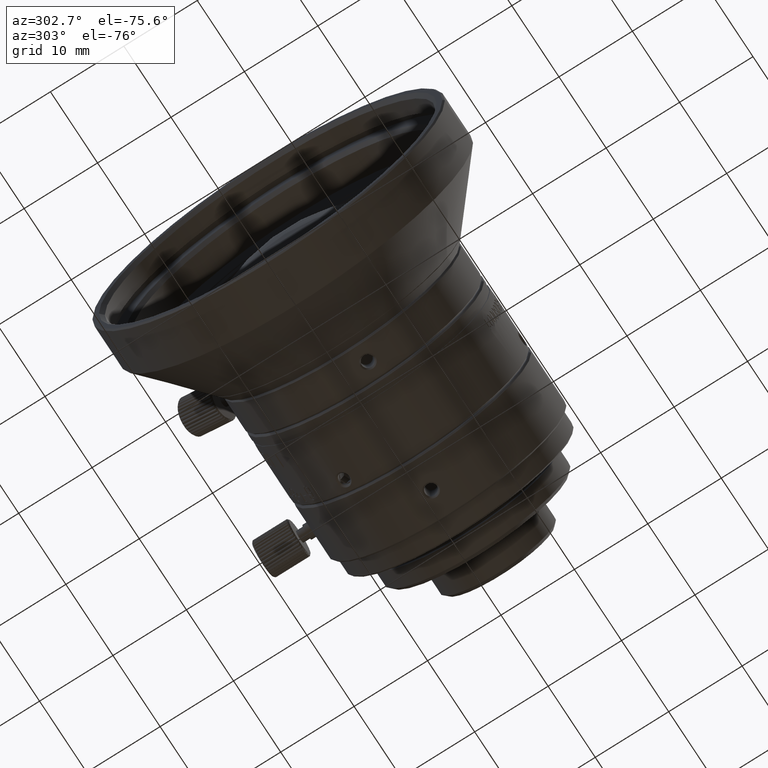
[diagram: clean part render]
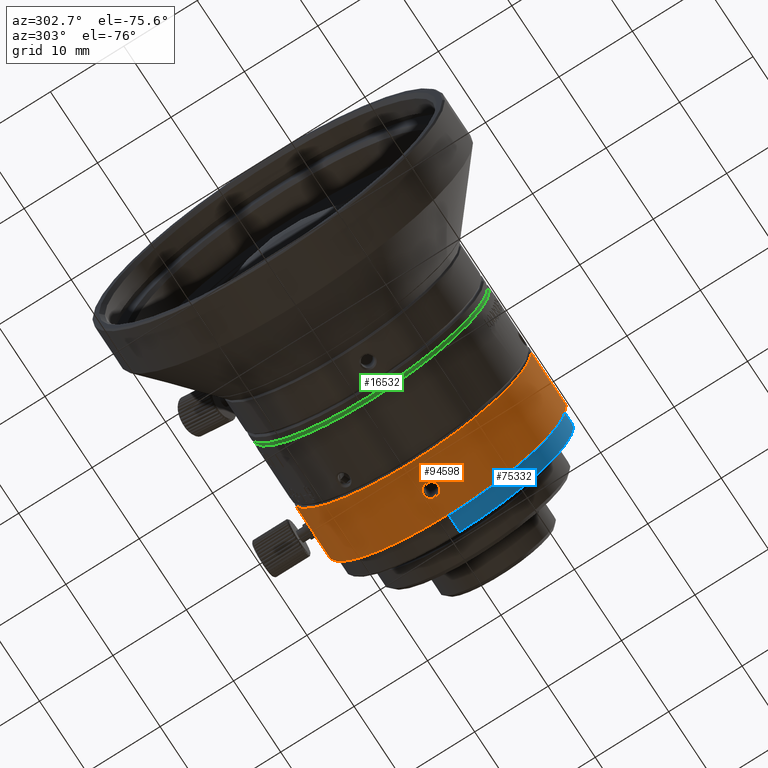
[diagram: same view with three faces highlighted in distinct colors, each labeled with its STEP entity id]
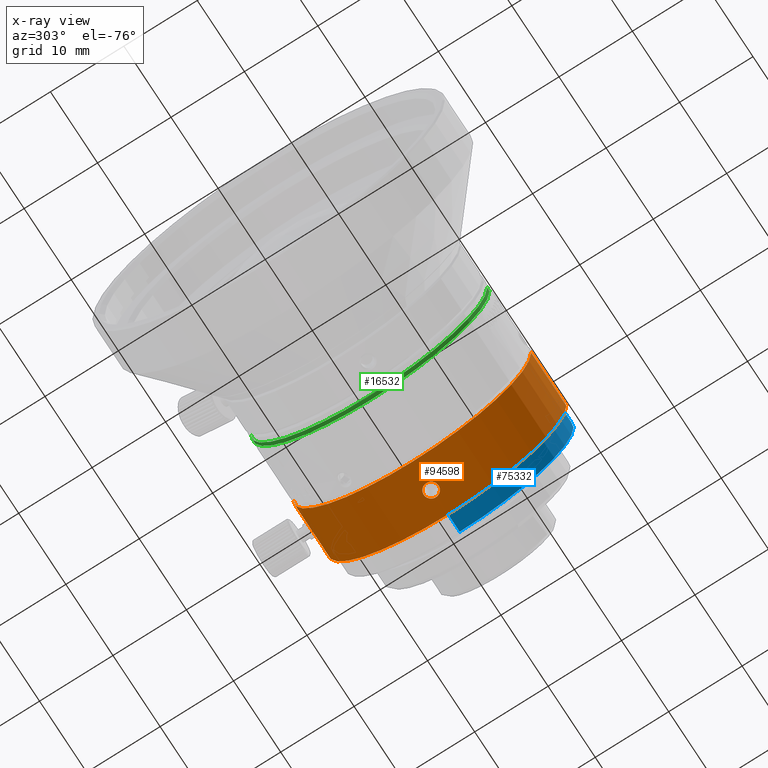
[diagram: x-ray of the same camera — body ghosted, the three highlighted faces saturated]
A machine part, auxiliary view with three faces highlighted in distinct colors.
The next image is the same camera in x-ray (body ghosted, the three faces saturated) — at least one of them is partly hidden behind the body in this view.
Their STEP definitions:

[orange] entity #94598 — the highlighted cylindrical surface (partial cylindrical patch) has radius 16.2 mm, axis along (1, 0, 0).
#1651 = VERTEX_POINT ( 'NONE', #30249 ) ;
#1791 = DIRECTION ( 'NONE',  ( 1.000000000000000000, -1.722961085593215078E-24, -8.815170815523999809E-12 ) ) ;
#2035 = CARTESIAN_POINT ( 'NONE',  ( 15.18534042907000092, -1.023954237996000050, -16.16759885121999929 ) ) ;
#2586 = CARTESIAN_POINT ( 'NONE',  ( 13.08276785900999961, 0.000000000000000000, -1.901589996578000030E-12 ) ) ;
#3249 = VERTEX_POINT ( 'NONE', #55598 ) ;
#3256 = CARTESIAN_POINT ( 'NONE',  ( 14.20437076444000013, 0.2596278309068000278, -16.19860793984000225 ) ) ;
#5725 = VERTEX_POINT ( 'NONE', #36969 ) ;
#7796 = VERTEX_POINT ( 'NONE', #62066 ) ;
#8870 = CARTESIAN_POINT ( 'NONE',  ( 14.20594869688999928, -0.2667350820668999978, -16.19850681342999721 ) ) ;
#9055 = ORIENTED_EDGE ( 'NONE', *, *, #91203, .F. ) ;
#9868 = ORIENTED_EDGE ( 'NONE', *, *, #31288, .F. ) ;
#10240 = VECTOR ( 'NONE', #44427, 1000.000000000000114 ) ;
#11054 = CARTESIAN_POINT ( 'NONE',  ( 14.30571687991000118, 0.5109972754256000282, -16.19251426003999939 ) ) ;
#11437 = AXIS2_PLACEMENT_3D ( 'NONE', #92370, #1791, #84082 ) ;
#11581 = CARTESIAN_POINT ( 'NONE',  ( 14.91276785900999968, 0.000000000000000000, -1.901589996578000030E-12 ) ) ;
#11656 = CARTESIAN_POINT ( 'NONE',  ( 15.68851022552000174, 16.17588453354000322, -0.8868685891627999807 ) ) ;
#13813 = VECTOR ( 'NONE', #49182, 1000.000000000000000 ) ;
#14437 = DIRECTION ( 'NONE',  ( -1.000000000000000000, 5.424387227406000301E-12, -3.679217242746999965E-09 ) ) ;
#14481 = DIRECTION ( 'NONE',  ( 1.000000000000000000, 0.000000000000000000, 0.000000000000000000 ) ) ;
#15400 = LINE ( 'NONE', #58267, #29796 ) ;
#15711 = VECTOR ( 'NONE', #39110, 1000.000000000000000 ) ;
#18328 = EDGE_CURVE ( 'NONE', #36064, #86863, #29776, .T. ) ;
#18384 = EDGE_CURVE ( 'NONE', #81886, #82570, #42471, .T. ) ;
#18465 = CARTESIAN_POINT ( 'NONE',  ( 14.30865479807000007, 16.19235046763000341, -0.5156898750541000220 ) ) ;
#18868 = DIRECTION ( 'NONE',  ( 0.000000000000000000, -1.000000000000000000, 1.173820985542000184E-13 ) ) ;
#19440 = ORIENTED_EDGE ( 'NONE', *, *, #48914, .F. ) ;
#19830 = DIRECTION ( 'NONE',  ( 1.000000000000000000, 0.000000000000000000, 0.000000000000000000 ) ) ;
#20381 = CARTESIAN_POINT ( 'NONE',  ( 14.47081415363000190, 16.18401877131999811, -0.7275170735867000360 ) ) ;
#22002 = CARTESIAN_POINT ( 'NONE',  ( 11.58276785900999961, 16.19999999999999929, 6.221713051510001204E-10 ) ) ;
#22996 = CARTESIAN_POINT ( 'NONE',  ( 16.18276785896000192, 2.322637394775999978E-08, -16.19999999994999840 ) ) ;
#23478 = CARTESIAN_POINT ( 'NONE',  ( 14.92510222602999903, -0.9902110472946000774, -16.16974852329999734 ) ) ;
#23653 = EDGE_CURVE ( 'NONE', #86863, #1651, #54165, .T. ) ;
#23873 = CIRCLE ( 'NONE', #59665, 16.19999999999999929 ) ;
#25666 = CARTESIAN_POINT ( 'NONE',  ( 16.18276785693000264, 0.08865937756656000479, -16.19999999980999661 ) ) ;
#25723 = DIRECTION ( 'NONE',  ( 1.000000000000000000, 0.000000000000000000, 0.000000000000000000 ) ) ;
#26029 = EDGE_LOOP ( 'NONE', ( #19440, #29024, #28886, #86872, #9055, #9868, #39815, #81169, #50043, #51751 ) ) ;
#26130 = CARTESIAN_POINT ( 'NONE',  ( 14.92034661370999871, 0.9889528994217999802, -16.16982776017999868 ) ) ;
#26537 = EDGE_CURVE ( 'NONE', #66237, #3249, #36542, .T. ) ;
#26663 = CYLINDRICAL_SURFACE ( 'NONE', #51531, 16.19999999999999929 ) ;
#28886 = ORIENTED_EDGE ( 'NONE', *, *, #90968, .F. ) ;
#29024 = ORIENTED_EDGE ( 'NONE', *, *, #96403, .F. ) ;
#29776 = B_SPLINE_CURVE_WITH_KNOTS ( 'NONE', 3,
 ( #42277, #71973, #78336, #34984, #57389, #11656, #92999, #87110, #41310, #34513, #20381, #18465, #49097, #78825, #64185 ),
 .UNSPECIFIED., .F., .F.,
 ( 4, 1, 1, 1, 1, 1, 1, 1, 1, 1, 1, 1, 4 ),
 ( 0.000000000000000000, 0.08333333202694999386, 0.1666666664135000031, 0.2500000008000000107, 0.3333333351866000216, 0.4166666695731999770, 0.5000000039597000123, 0.5833333383461999366, 0.6666666727328999231, 0.7500000071193000384, 0.8333333415057999627, 0.9166666758924999492, 1.000000000000000000 ),
 .UNSPECIFIED. ) ;
#29796 = VECTOR ( 'NONE', #14437, 1000.000000000000000 ) ;
#30249 = CARTESIAN_POINT ( 'NONE',  ( 13.08276785900999961, 16.19999999999999929, 8.500283810165000382E-13 ) ) ;
#31256 = CARTESIAN_POINT ( 'NONE',  ( 15.89763065306000200, -0.7245493843839000414, -16.18415386043000126 ) ) ;
#31288 = EDGE_CURVE ( 'NONE', #68317, #5725, #71357, .T. ) ;
#31734 = CARTESIAN_POINT ( 'NONE',  ( 14.18276785905999837, -2.322566548222999644E-08, -16.19999999994999840 ) ) ;
#31932 = AXIS2_PLACEMENT_3D ( 'NONE', #2586, #38606, #84400 ) ;
#32277 = CARTESIAN_POINT ( 'NONE',  ( 16.18276785935000106, 16.20000000000999663, -8.787671505888998401E-09 ) ) ;
#33438 = CARTESIAN_POINT ( 'NONE',  ( 16.05680150703999942, 0.5157593740102000002, -16.19234597594000036 ) ) ;
#33532 = CIRCLE ( 'NONE', #31932, 16.20000000000000639 ) ;
#34513 = CARTESIAN_POINT ( 'NONE',  ( 14.68148907370999900, 16.17573771188000009, -0.8895027490008999838 ) ) ;
#34984 = CARTESIAN_POINT ( 'NONE',  ( 16.05986868609999618, 16.19251709911000248, -0.5109111485076001102 ) ) ;
#35042 = CARTESIAN_POINT ( 'NONE',  ( 14.18276785905999837, -2.322566548222999644E-08, -16.19999999994999840 ) ) ;
#35085 = CARTESIAN_POINT ( 'NONE',  ( 18.64276785901000011, 16.19999999999999929, 2.632029100178000149E-10 ) ) ;
#35170 = CARTESIAN_POINT ( 'NONE',  ( 18.64276785901000011, -16.19999999999999929, 2.475535604338000097E-10 ) ) ;
#36064 = VERTEX_POINT ( 'NONE', #32277 ) ;
#36542 = B_SPLINE_CURVE_WITH_KNOTS ( 'NONE', 3,
 ( #71371, #92879, #3256, #11054, #92397, #48492, #26130, #64063, #93823, #55834, #78211, #33438, #56791, #25666, #86507 ),
 .UNSPECIFIED., .F., .F.,
 ( 4, 1, 1, 1, 1, 1, 1, 1, 1, 1, 1, 1, 4 ),
 ( 0.000000000000000000, 0.08333334075205998948, 0.1666666740724999929, 0.2500000073930000455, 0.3333333407132999526, 0.4166666740338000330, 0.5000000073540999956, 0.5833333406746000760, 0.6666666739951000453, 0.7500000073154000635, 0.8333333406358000017, 0.9166666739563000821, 1.000000000000000000 ),
 .UNSPECIFIED. ) ;
#36969 = CARTESIAN_POINT ( 'NONE',  ( 11.58276785900999961, 16.19999999999999929, 6.221713051510001204E-10 ) ) ;
#37190 = EDGE_CURVE ( 'NONE', #7796, #1651, #33532, .T. ) ;
#38045 = DIRECTION ( 'NONE',  ( -1.000000000000000000, 2.664535259098000279E-13, 3.107332204090000060E-09 ) ) ;
#38065 = CARTESIAN_POINT ( 'NONE',  ( 16.18276785896000192, -0.08681274266614999457, -16.19999999994999840 ) ) ;
#38533 = CARTESIAN_POINT ( 'NONE',  ( 14.18276786108999943, -0.08865937756585000329, -16.19999999980999661 ) ) ;
#38606 = DIRECTION ( 'NONE',  ( 1.000000000000000000, 0.000000000000000000, 0.000000000000000000 ) ) ;
#39110 = DIRECTION ( 'NONE',  ( 1.000000000000000000, 2.428798895694999775E-14, 1.790072004293999993E-10 ) ) ;
#39815 = ORIENTED_EDGE ( 'NONE', *, *, #72976, .F. ) ;
#41310 = CARTESIAN_POINT ( 'NONE',  ( 14.92493014707999954, 16.16975131651999931, -0.9901634896918000139 ) ) ;
#42277 = CARTESIAN_POINT ( 'NONE',  ( 16.18276785935000106, 16.20000000000999663, -8.787671505888998401E-09 ) ) ;
#42371 = EDGE_CURVE ( 'NONE', #3249, #66237, #64742, .T. ) ;
#42471 = CIRCLE ( 'NONE', #11437, 16.19999999999999929 ) ;
#44172 = VERTEX_POINT ( 'NONE', #35170 ) ;
#44427 = DIRECTION ( 'NONE',  ( -0.9999999999999998890, -5.618778176567999300E-11, 1.181073761933999863E-08 ) ) ;
#46423 = CARTESIAN_POINT ( 'NONE',  ( 11.18276785900999926, -16.19999999999999929, -1.087840154769000101E-09 ) ) ;
#48073 = FACE_BOUND ( 'NONE', #68652, .T. ) ;
#48492 = CARTESIAN_POINT ( 'NONE',  ( 14.67698690915999826, 0.8868409032039999973, -16.17588601329000042 ) ) ;
#48914 = EDGE_CURVE ( 'NONE', #57316, #36064, #15400, .T. ) ;
#49097 = CARTESIAN_POINT ( 'NONE',  ( 14.20573037522999904, 16.19852025850000032, -0.2659268660360999958 ) ) ;
#49182 = DIRECTION ( 'NONE',  ( -1.000000000000000000, 0.000000000000000000, 0.000000000000000000 ) ) ;
#49601 = AXIS2_PLACEMENT_3D ( 'NONE', #79271, #14481, #80698 ) ;
#50043 = ORIENTED_EDGE ( 'NONE', *, *, #23653, .F. ) ;
#50816 = CARTESIAN_POINT ( 'NONE',  ( 11.58276785900999961, 16.19876538504999886, -0.2000000000000000111 ) ) ;
#51531 = AXIS2_PLACEMENT_3D ( 'NONE', #11581, #25723, #18868 ) ;
#51751 = ORIENTED_EDGE ( 'NONE', *, *, #18328, .F. ) ;
#51768 = CARTESIAN_POINT ( 'NONE',  ( 11.18276785900999926, -16.19999999999999929, -1.087840154769000101E-09 ) ) ;
#51906 = CARTESIAN_POINT ( 'NONE',  ( 11.18276785900999926, 16.19999999999999929, 1.865104186788000144E-09 ) ) ;
#52689 = CARTESIAN_POINT ( 'NONE',  ( 16.16116495358000194, -0.2596278309073000168, -16.19860793984000225 ) ) ;
#53181 = CARTESIAN_POINT ( 'NONE',  ( 14.68166168437999985, -0.8895830523971999249, -16.17573253856000193 ) ) ;
#54165 = LINE ( 'NONE', #66807, #10240 ) ;
#55598 = CARTESIAN_POINT ( 'NONE',  ( 16.18276785896000192, 2.322637394775999978E-08, -16.19999999994999840 ) ) ;
#55834 = CARTESIAN_POINT ( 'NONE',  ( 15.68387403364000043, 0.8895830523973000670, -16.17573253856000193 ) ) ;
#56791 = CARTESIAN_POINT ( 'NONE',  ( 16.15958702113000101, 0.2667350820665999600, -16.19850681342999721 ) ) ;
#56843 = FACE_OUTER_BOUND ( 'NONE', #26029, .T. ) ;
#57316 = VERTEX_POINT ( 'NONE', #35085 ) ;
#57389 = CARTESIAN_POINT ( 'NONE',  ( 15.89766215673999916, 16.18415505799999821, -0.7245292509848000329 ) ) ;
#58267 = CARTESIAN_POINT ( 'NONE',  ( 18.64276785901000011, 16.19999999999999929, 2.632029100178000149E-10 ) ) ;
#59665 = AXIS2_PLACEMENT_3D ( 'NONE', #94356, #19830, #77798 ) ;
#60878 = VECTOR ( 'NONE', #38045, 1000.000000000000000 ) ;
#62066 = CARTESIAN_POINT ( 'NONE',  ( 13.08276785900999961, 16.19876538504999886, -0.2000000000000000111 ) ) ;
#64063 = CARTESIAN_POINT ( 'NONE',  ( 15.18019528894999937, 1.023954237996000050, -16.16759885121999929 ) ) ;
#64185 = CARTESIAN_POINT ( 'NONE',  ( 14.18276785773000093, 16.20000000006000107, -1.112945519175000111E-08 ) ) ;
#64742 = B_SPLINE_CURVE_WITH_KNOTS ( 'NONE', 3,
 ( #22996, #38065, #52689, #68720, #31256, #67763, #90201, #2035, #23478, #53181, #82877, #75564, #8870, #38533, #31734 ),
 .UNSPECIFIED., .F., .F.,
 ( 4, 1, 1, 1, 1, 1, 1, 1, 1, 1, 1, 1, 4 ),
 ( 0.000000000000000000, 0.08333334075205998948, 0.1666666740724999929, 0.2500000073930000455, 0.3333333407132999526, 0.4166666740338000330, 0.5000000073540999956, 0.5833333406746000760, 0.6666666739951000453, 0.7500000073154000635, 0.8333333406358000017, 0.9166666739563000821, 1.000000000000000000 ),
 .UNSPECIFIED. ) ;
#66132 = ORIENTED_EDGE ( 'NONE', *, *, #26537, .F. ) ;
#66237 = VERTEX_POINT ( 'NONE', #35042 ) ;
#66807 = CARTESIAN_POINT ( 'NONE',  ( 14.18276785773000093, 16.20000000006000107, -1.112945519175000111E-08 ) ) ;
#67763 = CARTESIAN_POINT ( 'NONE',  ( 15.68854880886000025, -0.8868409032039999973, -16.17588601329000042 ) ) ;
#67980 = CARTESIAN_POINT ( 'NONE',  ( 14.18276785773000093, 16.20000000006000107, -1.112945519175000111E-08 ) ) ;
#68317 = VERTEX_POINT ( 'NONE', #50816 ) ;
#68652 = EDGE_LOOP ( 'NONE', ( #91332, #66132 ) ) ;
#68720 = CARTESIAN_POINT ( 'NONE',  ( 16.05981883810999733, -0.5109972754256000282, -16.19251426003999939 ) ) ;
#71357 = CIRCLE ( 'NONE', #49601, 16.20000000000000639 ) ;
#71371 = CARTESIAN_POINT ( 'NONE',  ( 14.18276785905999837, -2.322566548222999644E-08, -16.19999999994999840 ) ) ;
#71973 = CARTESIAN_POINT ( 'NONE',  ( 16.18276785863999834, 16.19999999997000018, -0.08679460974323999212 ) ) ;
#72055 = LINE ( 'NONE', #93077, #13813 ) ;
#72976 = EDGE_CURVE ( 'NONE', #7796, #68317, #72055, .T. ) ;
#75564 = CARTESIAN_POINT ( 'NONE',  ( 14.30873421098000087, -0.5157593740103000313, -16.19234597594000036 ) ) ;
#77798 = DIRECTION ( 'NONE',  ( 0.000000000000000000, -1.000000000000000000, 1.173820985542000184E-13 ) ) ;
#78211 = CARTESIAN_POINT ( 'NONE',  ( 15.89447698448999802, 0.7277881304180999766, -16.18400747536000139 ) ) ;
#78336 = CARTESIAN_POINT ( 'NONE',  ( 16.16117443983999991, 16.19860858107999846, -0.2595691487334000347 ) ) ;
#78825 = CARTESIAN_POINT ( 'NONE',  ( 14.18276786079000118, 16.19999999986999839, -0.08847868166368999532 ) ) ;
#79271 = CARTESIAN_POINT ( 'NONE',  ( 11.58276785900999961, 0.000000000000000000, -1.901589996578000030E-12 ) ) ;
#80698 = DIRECTION ( 'NONE',  ( 0.000000000000000000, 0.9999237892008205897, -0.01234567901223023595 ) ) ;
#81169 = ORIENTED_EDGE ( 'NONE', *, *, #37190, .T. ) ;
#81886 = VERTEX_POINT ( 'NONE', #51768 ) ;
#82570 = VERTEX_POINT ( 'NONE', #51906 ) ;
#82877 = CARTESIAN_POINT ( 'NONE',  ( 14.47105873352999872, -0.7277881304180000566, -16.18400747536000139 ) ) ;
#84082 = DIRECTION ( 'NONE',  ( 0.000000000000000000, -1.000000000000000000, 1.954540781624999954E-13 ) ) ;
#84400 = DIRECTION ( 'NONE',  ( 0.000000000000000000, 0.9999237892008205897, -0.01234567901223023595 ) ) ;
#86507 = CARTESIAN_POINT ( 'NONE',  ( 16.18276785896000192, 2.322637394775999978E-08, -16.19999999994999840 ) ) ;
#86863 = VERTEX_POINT ( 'NONE', #67980 ) ;
#86872 = ORIENTED_EDGE ( 'NONE', *, *, #18384, .T. ) ;
#87043 = LINE ( 'NONE', #46423, #15711 ) ;
#87110 = CARTESIAN_POINT ( 'NONE',  ( 15.18521448872000157, 16.16759845700000042, -1.023961322409999930 ) ) ;
#87757 = LINE ( 'NONE', #22002, #60878 ) ;
#90201 = CARTESIAN_POINT ( 'NONE',  ( 15.44518910430999981, -0.9889528994217999802, -16.16982776017999868 ) ) ;
#90968 = EDGE_CURVE ( 'NONE', #81886, #44172, #87043, .T. ) ;
#91203 = EDGE_CURVE ( 'NONE', #5725, #82570, #87757, .T. ) ;
#91332 = ORIENTED_EDGE ( 'NONE', *, *, #42371, .F. ) ;
#92370 = CARTESIAN_POINT ( 'NONE',  ( 11.18276785908000193, 0.000000000000000000, -3.166356066856000152E-12 ) ) ;
#92397 = CARTESIAN_POINT ( 'NONE',  ( 14.46790506495999828, 0.7245493843839000414, -16.18415386043000126 ) ) ;
#92879 = CARTESIAN_POINT ( 'NONE',  ( 14.18276785905999837, 0.08681274266682000029, -16.19999999994999840 ) ) ;
#92999 = CARTESIAN_POINT ( 'NONE',  ( 15.44512092589000041, 16.16982642973999873, -0.9889739630875001852 ) ) ;
#93077 = CARTESIAN_POINT ( 'NONE',  ( 13.08276785900999961, 16.19876538504999886, -0.2000000000005000278 ) ) ;
#93823 = CARTESIAN_POINT ( 'NONE',  ( 15.44043349199000126, 0.9902110472946000774, -16.16974852329999734 ) ) ;
#94356 = CARTESIAN_POINT ( 'NONE',  ( 18.64276785901000011, 0.000000000000000000, -1.901589996578000030E-12 ) ) ;
#94598 = ADVANCED_FACE ( 'NONE', ( #56843, #48073 ), #26663, .T. ) ;
#96403 = EDGE_CURVE ( 'NONE', #44172, #57316, #23873, .T. ) ;

[blue] entity #75332 — the highlighted cylindrical surface (partial cylindrical patch) has radius 15.5 mm, axis along (-1, 0, 0).
#403 = ORIENTED_EDGE ( 'NONE', *, *, #68726, .T. ) ;
#1867 = DIRECTION ( 'NONE',  ( -1.000000000000000000, 6.599165658371999947E-12, -1.154270368177339935E-21 ) ) ;
#2729 = CARTESIAN_POINT ( 'NONE',  ( 19.84276785901000295, 2.824407374646000401E-13, 0.000000000000000000 ) ) ;
#3913 = EDGE_LOOP ( 'NONE', ( #18887, #403, #37058, #88506 ) ) ;
#12100 = CARTESIAN_POINT ( 'NONE',  ( 18.44276785899999993, -2.858672998980000008E-09, -15.50000000001000089 ) ) ;
#12228 = AXIS2_PLACEMENT_3D ( 'NONE', #55875, #1867, #76359 ) ;
#12394 = VERTEX_POINT ( 'NONE', #12100 ) ;
#13288 = AXIS2_PLACEMENT_3D ( 'NONE', #2729, #47508, #40180 ) ;
#13303 = CARTESIAN_POINT ( 'NONE',  ( 21.24276785901999887, -2.858673928068999743E-09, -15.50000000001000089 ) ) ;
#13905 = VECTOR ( 'NONE', #65347, 1000.000000000000000 ) ;
#15483 = EDGE_CURVE ( 'NONE', #20955, #29099, #27550, .T. ) ;
#17361 = VECTOR ( 'NONE', #94757, 1000.000000000000000 ) ;
#17832 = CYLINDRICAL_SURFACE ( 'NONE', #13288, 15.50000000000000000 ) ;
#18887 = ORIENTED_EDGE ( 'NONE', *, *, #32012, .F. ) ;
#19991 = CIRCLE ( 'NONE', #12228, 15.50000000000000000 ) ;
#20267 = CIRCLE ( 'NONE', #24955, 15.50000000000000000 ) ;
#20955 = VERTEX_POINT ( 'NONE', #29650 ) ;
#24804 = DIRECTION ( 'NONE',  ( 0.000000000000000000, -1.747614304347000178E-10, -1.000000000000000000 ) ) ;
#24955 = AXIS2_PLACEMENT_3D ( 'NONE', #69088, #32109, #24804 ) ;
#26009 = CARTESIAN_POINT ( 'NONE',  ( 21.24276785901999887, 1.056308715010000003E-09, 15.50000000001000089 ) ) ;
#27550 = LINE ( 'NONE', #58189, #17361 ) ;
#29099 = VERTEX_POINT ( 'NONE', #26009 ) ;
#29650 = CARTESIAN_POINT ( 'NONE',  ( 18.44276785899999993, 1.056313006853000059E-09, 15.50000000001000089 ) ) ;
#32012 = EDGE_CURVE ( 'NONE', #79080, #12394, #72187, .T. ) ;
#32109 = DIRECTION ( 'NONE',  ( -1.000000000000000000, 0.000000000000000000, 0.000000000000000000 ) ) ;
#37058 = ORIENTED_EDGE ( 'NONE', *, *, #15483, .F. ) ;
#39240 = FACE_OUTER_BOUND ( 'NONE', #3913, .T. ) ;
#40180 = DIRECTION ( 'NONE',  ( 0.000000000000000000, -1.747614304347000178E-10, -1.000000000000000000 ) ) ;
#45790 = CARTESIAN_POINT ( 'NONE',  ( 21.24276785901999887, -2.858673928068999743E-09, -15.50000000001000089 ) ) ;
#47508 = DIRECTION ( 'NONE',  ( -1.000000000000000000, 0.000000000000000000, 0.000000000000000000 ) ) ;
#55875 = CARTESIAN_POINT ( 'NONE',  ( 21.24276785905999887, 2.609468196751000109E-12, 0.000000000000000000 ) ) ;
#58189 = CARTESIAN_POINT ( 'NONE',  ( 18.44276785899999993, 1.056313006853000059E-09, 15.50000000001000089 ) ) ;
#65347 = DIRECTION ( 'NONE',  ( -1.000000000000000000, 0.000000000000000000, 1.332267629539000065E-14 ) ) ;
#68726 = EDGE_CURVE ( 'NONE', #79080, #29099, #19991, .T. ) ;
#69088 = CARTESIAN_POINT ( 'NONE',  ( 18.44276785902999904, 2.824407374646000401E-13, 0.000000000000000000 ) ) ;
#72187 = LINE ( 'NONE', #13303, #13905 ) ;
#75332 = ADVANCED_FACE ( 'NONE', ( #39240 ), #17832, .T. ) ;
#76359 = DIRECTION ( 'NONE',  ( 0.000000000000000000, -1.749115612385000131E-10, -1.000000000000000000 ) ) ;
#79080 = VERTEX_POINT ( 'NONE', #45790 ) ;
#88506 = ORIENTED_EDGE ( 'NONE', *, *, #92248, .F. ) ;
#92248 = EDGE_CURVE ( 'NONE', #12394, #20955, #20267, .T. ) ;
#94757 = DIRECTION ( 'NONE',  ( 1.000000000000000000, 0.000000000000000000, 0.000000000000000000 ) ) ;

[green] entity #16532 — the highlighted cylindrical surface (partial cylindrical patch) has radius 16.1 mm, axis along (1, 0, 0).
#4644 = LINE ( 'NONE', #27043, #22531 ) ;
#5643 = DIRECTION ( 'NONE',  ( 0.000000000000000000, -1.000000000000000000, 2.515586083125999620E-14 ) ) ;
#8925 = EDGE_CURVE ( 'NONE', #96050, #25708, #94211, .T. ) ;
#9419 = CARTESIAN_POINT ( 'NONE',  ( 1.981790000000000163, 0.000000000000000000, -4.050093593833000200E-13 ) ) ;
#9964 = EDGE_CURVE ( 'NONE', #25708, #47448, #56075, .T. ) ;
#10699 = AXIS2_PLACEMENT_3D ( 'NONE', #9419, #55172, #45932 ) ;
#16532 = ADVANCED_FACE ( 'NONE', ( #64053 ), #19282, .T. ) ;
#18395 = AXIS2_PLACEMENT_3D ( 'NONE', #42620, #48963, #5643 ) ;
#18729 = AXIS2_PLACEMENT_3D ( 'NONE', #30382, #60083, #73204 ) ;
#19282 = CYLINDRICAL_SURFACE ( 'NONE', #18395, 16.10000000000000142 ) ;
#22531 = VECTOR ( 'NONE', #34822, 1000.000000000000000 ) ;
#24766 = EDGE_LOOP ( 'NONE', ( #26697, #71578, #82192, #28121 ) ) ;
#25708 = VERTEX_POINT ( 'NONE', #89859 ) ;
#26697 = ORIENTED_EDGE ( 'NONE', *, *, #9964, .F. ) ;
#27043 = CARTESIAN_POINT ( 'NONE',  ( 2.481790000000000163, 16.10000000000000142, 0.000000000000000000 ) ) ;
#27480 = CARTESIAN_POINT ( 'NONE',  ( 1.981790000000000163, -16.10000000000000142, 0.000000000000000000 ) ) ;
#28121 = ORIENTED_EDGE ( 'NONE', *, *, #57926, .F. ) ;
#30382 = CARTESIAN_POINT ( 'NONE',  ( 2.481790000000000163, 0.000000000000000000, -4.050093593833000200E-13 ) ) ;
#34822 = DIRECTION ( 'NONE',  ( -1.000000000000000000, 0.000000000000000000, 0.000000000000000000 ) ) ;
#37859 = CARTESIAN_POINT ( 'NONE',  ( 2.481790000000000163, 16.10000000000000142, 0.000000000000000000 ) ) ;
#42620 = CARTESIAN_POINT ( 'NONE',  ( 2.231790000000000163, 0.000000000000000000, -4.050093593833000200E-13 ) ) ;
#45932 = DIRECTION ( 'NONE',  ( 0.000000000000000000, -1.000000000000000000, 2.515586083125999620E-14 ) ) ;
#47448 = VERTEX_POINT ( 'NONE', #37859 ) ;
#48963 = DIRECTION ( 'NONE',  ( 1.000000000000000000, 0.000000000000000000, 0.000000000000000000 ) ) ;
#49528 = CIRCLE ( 'NONE', #10699, 16.10000000000000142 ) ;
#55172 = DIRECTION ( 'NONE',  ( 1.000000000000000000, 0.000000000000000000, 0.000000000000000000 ) ) ;
#56075 = CIRCLE ( 'NONE', #18729, 16.10000000000000142 ) ;
#56472 = CARTESIAN_POINT ( 'NONE',  ( 1.981790000000000163, -16.10000000000000142, 0.000000000000000000 ) ) ;
#57926 = EDGE_CURVE ( 'NONE', #47448, #66590, #4644, .T. ) ;
#60083 = DIRECTION ( 'NONE',  ( 1.000000000000000000, 0.000000000000000000, 0.000000000000000000 ) ) ;
#64053 = FACE_OUTER_BOUND ( 'NONE', #24766, .T. ) ;
#65397 = DIRECTION ( 'NONE',  ( 1.000000000000000000, 0.000000000000000000, 0.000000000000000000 ) ) ;
#66590 = VERTEX_POINT ( 'NONE', #77691 ) ;
#69358 = EDGE_CURVE ( 'NONE', #96050, #66590, #49528, .T. ) ;
#71578 = ORIENTED_EDGE ( 'NONE', *, *, #8925, .F. ) ;
#73051 = VECTOR ( 'NONE', #65397, 1000.000000000000000 ) ;
#73204 = DIRECTION ( 'NONE',  ( 0.000000000000000000, -1.000000000000000000, 2.515586083125999620E-14 ) ) ;
#77691 = CARTESIAN_POINT ( 'NONE',  ( 1.981790000000000163, 16.10000000000000142, 0.000000000000000000 ) ) ;
#82192 = ORIENTED_EDGE ( 'NONE', *, *, #69358, .T. ) ;
#89859 = CARTESIAN_POINT ( 'NONE',  ( 2.481790000000000163, -16.10000000000000142, 0.000000000000000000 ) ) ;
#94211 = LINE ( 'NONE', #27480, #73051 ) ;
#96050 = VERTEX_POINT ( 'NONE', #56472 ) ;